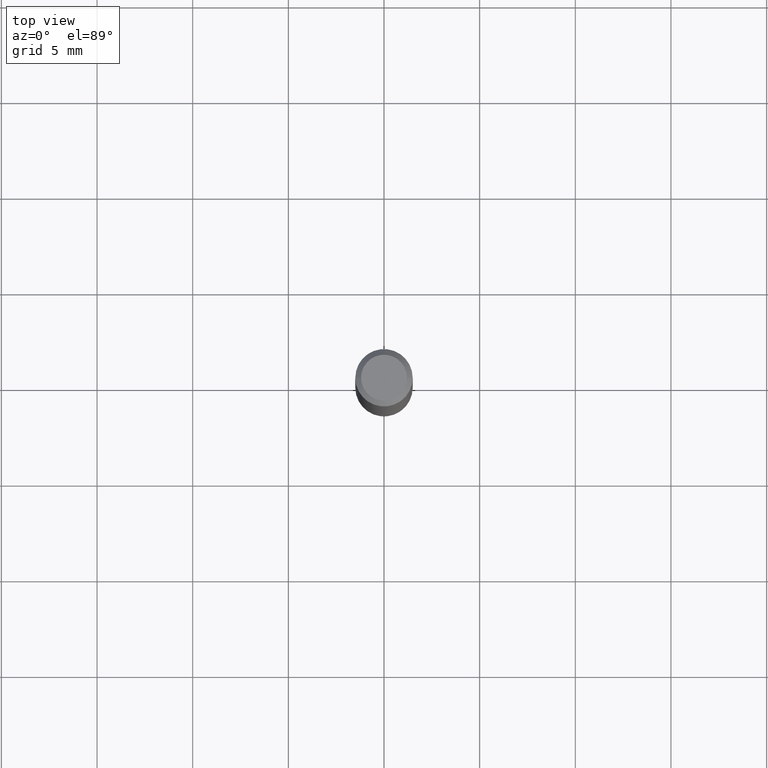
[diagram: clean part render]
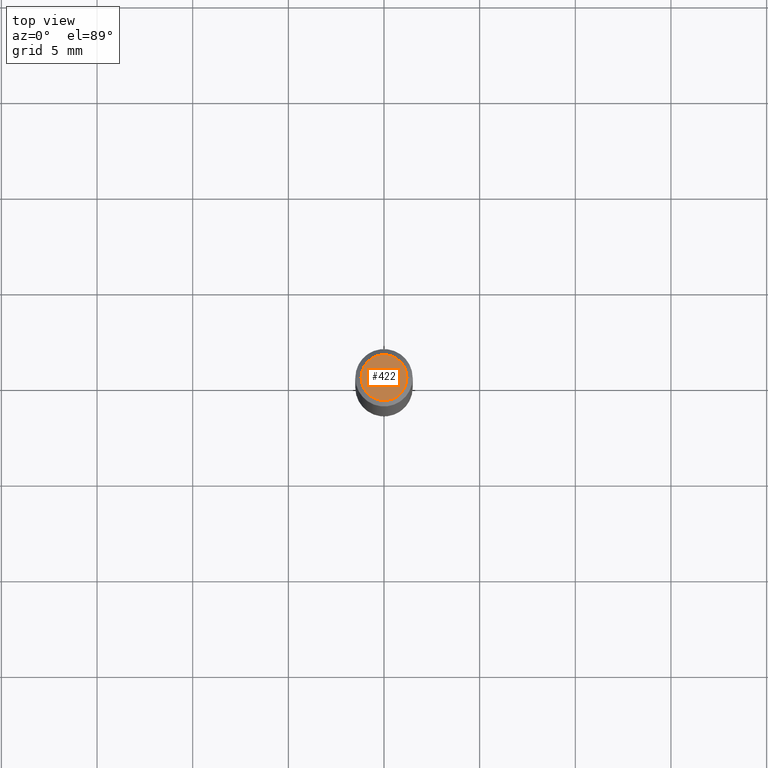
[diagram: same view with one face highlighted and labeled with its STEP entity id]
A machine part, top view. The second image highlights one B-rep face of the part: STEP entity #422.
In plain terms, the highlighted planar face has unit normal (0, -0, -1).
Its self-contained STEP definition (entity closure, byte-faithful):
#22 = PLANE ( 'NONE',  #186 ) ;
#24 = CIRCLE ( 'NONE', #349, 0.04724000000000000421 ) ;
#35 = EDGE_CURVE ( 'NONE', #167, #176, #24, .T. ) ;
#40 = CIRCLE ( 'NONE', #69, 0.04724000000000000421 ) ;
#65 = DIRECTION ( 'NONE',  ( -1.000000000000000000, 6.982962677686265922E-15, -4.876176775795935793E-29 ) ) ;
#69 = AXIS2_PLACEMENT_3D ( 'NONE', #337, #146, #375 ) ;
#146 = DIRECTION ( 'NONE',  ( -2.445468806185136597E-29, 3.491481338843145583E-15, 1.000000000000000000 ) ) ;
#167 = VERTEX_POINT ( 'NONE', #227 ) ;
#176 = VERTEX_POINT ( 'NONE', #272 ) ;
#179 = ORIENTED_EDGE ( 'NONE', *, *, #265, .T. ) ;
#186 = AXIS2_PLACEMENT_3D ( 'NONE', #370, #300, #65 ) ;
#227 = CARTESIAN_POINT ( 'NONE',  ( 0.04724000000000000421, -3.852183633974369345E-16, -3.380025165621689721E-19 ) ) ;
#265 = EDGE_CURVE ( 'NONE', #176, #167, #40, .T. ) ;
#272 = CARTESIAN_POINT ( 'NONE',  ( -0.04724000000000000421, 3.504923541997677355E-16, -3.380025165670481712E-19 ) ) ;
#292 = ORIENTED_EDGE ( 'NONE', *, *, #35, .T. ) ;
#300 = DIRECTION ( 'NONE',  ( 2.438088387897960049E-29, -3.491481338843145188E-15, -1.000000000000000000 ) ) ;
#321 = DIRECTION ( 'NONE',  ( -2.445468806185136597E-29, 3.491481338843145583E-15, 1.000000000000000000 ) ) ;
#322 = DIRECTION ( 'NONE',  ( 1.000000000000000000, -6.982962677686266711E-15, 4.876185090822587894E-29 ) ) ;
#337 = CARTESIAN_POINT ( 'NONE',  ( 8.265746106709734507E-48, -1.180129479067563789E-33, -3.380025165646692144E-19 ) ) ;
#349 = AXIS2_PLACEMENT_3D ( 'NONE', #429, #321, #322 ) ;
#370 = CARTESIAN_POINT ( 'NONE',  ( 4.132873053354867254E-48, -5.900647395337818946E-34, -1.690012582823346072E-19 ) ) ;
#375 = DIRECTION ( 'NONE',  ( 1.000000000000000000, -6.982962677686266711E-15, 4.876185090822587894E-29 ) ) ;
#410 = FACE_OUTER_BOUND ( 'NONE', #470, .T. ) ;
#422 = ADVANCED_FACE ( 'NONE', ( #410 ), #22, .F. ) ;
#429 = CARTESIAN_POINT ( 'NONE',  ( 8.265746106709734507E-48, -1.180129479067563789E-33, -3.380025165646692144E-19 ) ) ;
#470 = EDGE_LOOP ( 'NONE', ( #179, #292 ) ) ;